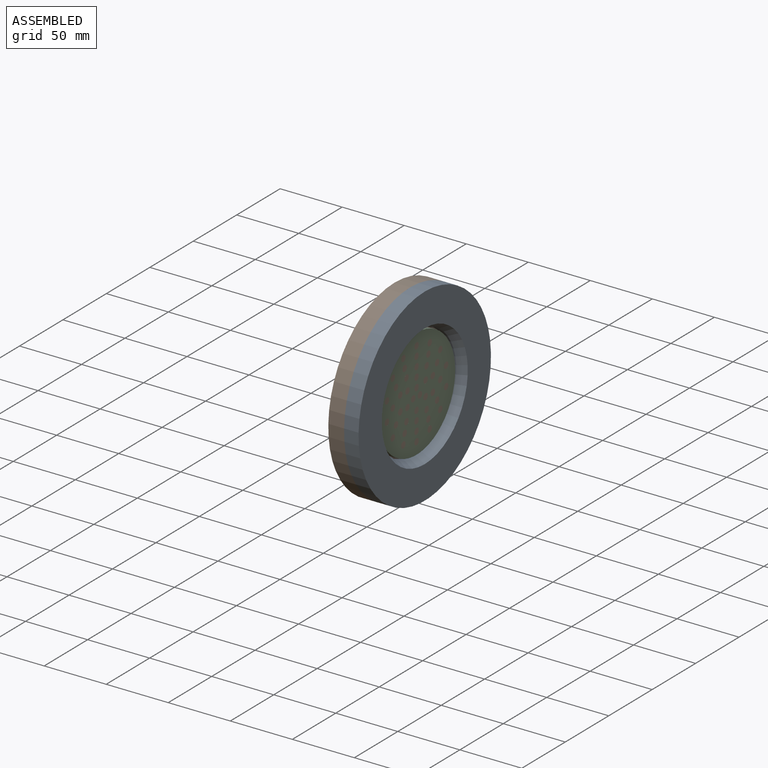
[diagram: assembled view]
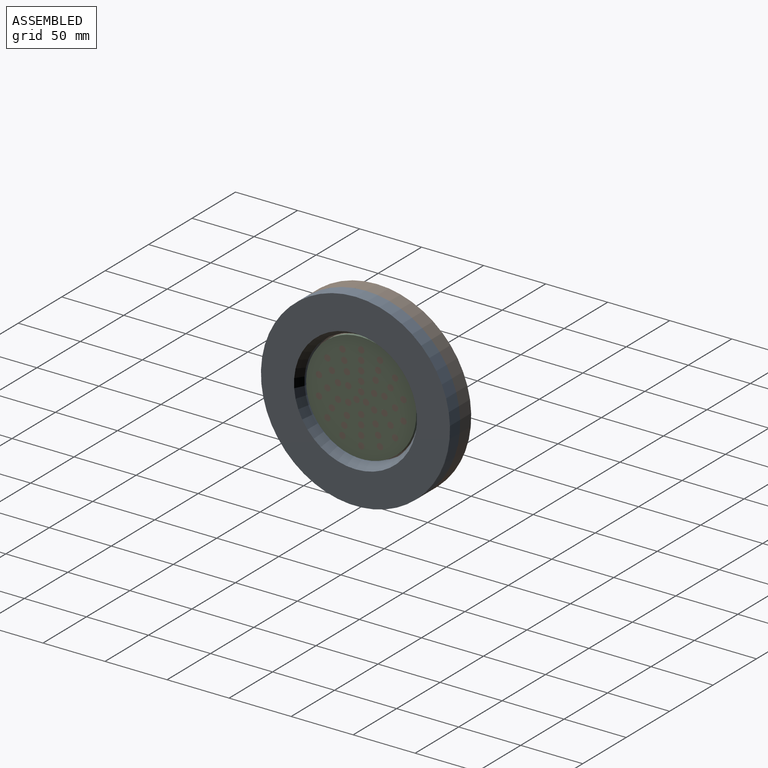
[diagram: assembled view, second angle]
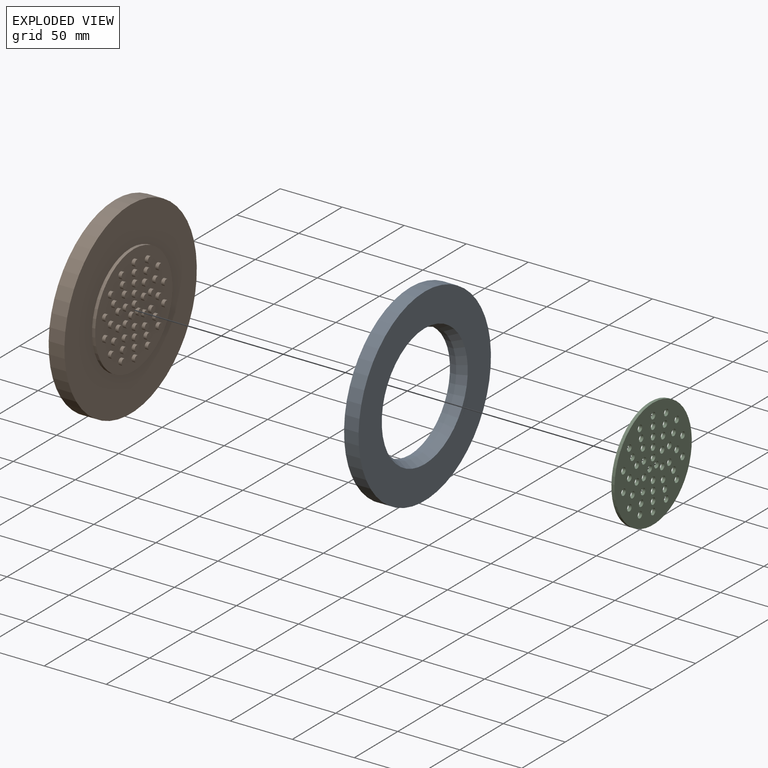
[diagram: exploded view]
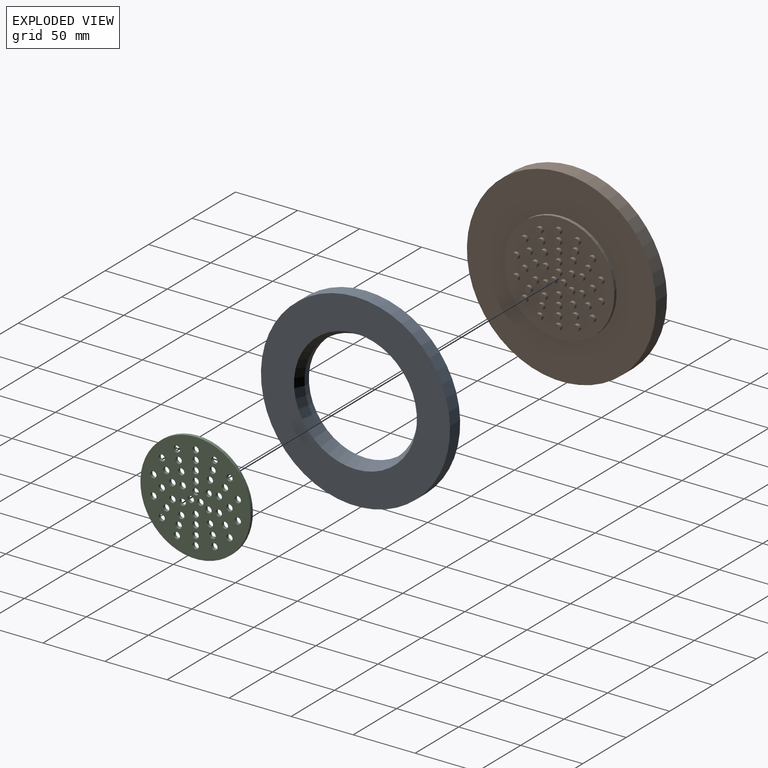
[diagram: exploded view, second angle]
ASSEMBLY  parts=3 mates=3
PART A: 5 faces, bbox 11.7x152.4x152.4 mm
  f0: plane 152.4x152.4mm, normal (-1,0,0), area 11674.5mm2, adj f1,f4
  f1: cylinder r=45.72mm len=91.44mm, axis (-1,0,0), area 1459.3mm2, adj f0,f2
  f2: cone r=45.72mm half-angle=30deg, axis (1,0,0), area 2281.9mm2, adj f1,f3
  f3: plane 152.4x152.4mm, normal (1,0,0), area 10533.6mm2, adj f2,f4
  f4: cylinder r=76.2mm len=152.4mm, axis (-1,0,0), area 5594.1mm2, adj f0,f3
PART B: 95 faces, bbox 17.8x152.4x152.4 mm
  f0: plane 88.9x88.9mm, normal (1,0,0), area 5295.1mm2, adj f1,f2,f4,f6,f8,f10,f12,f14
  f1: cylinder r=44.45mm len=88.9mm, axis (-1,0,0), area 709.4mm2, adj f0,f94
  f2: cylinder r=2.54mm len=5.08mm, axis (-1,0,0), area 40.5mm2, adj f0,f3
  f3: plane 5.08x5.08mm, normal (1,0,0), area 20.3mm2, adj f2
  f4: cylinder r=2.54mm len=5.08mm, axis (-1,0,0), area 40.5mm2, adj f0,f5
  f5: plane 5.08x5.08mm, normal (1,0,0), area 20.3mm2, adj f4
  f6: cylinder r=2.54mm len=5.08mm, axis (-1,0,0), area 40.5mm2, adj f0,f7
  f7: plane 5.08x5.08mm, normal (1,0,0), area 20.3mm2, adj f6
  f8: cylinder r=2.54mm len=5.08mm, axis (-1,0,0), area 40.5mm2, adj f0,f9
  f9: plane 5.08x5.08mm, normal (1,0,0), area 20.3mm2, adj f8
  f10: cylinder r=2.54mm len=5.08mm, axis (-1,0,0), area 40.5mm2, adj f0,f11
  f11: plane 5.08x5.08mm, normal (1,0,0), area 20.3mm2, adj f10
  f12: cylinder r=2.54mm len=5.08mm, axis (-1,0,0), area 40.5mm2, adj f0,f13
  f13: plane 5.08x5.08mm, normal (1,0,0), area 20.3mm2, adj f12
  f14: cylinder r=2.54mm len=5.08mm, axis (-1,0,0), area 40.5mm2, adj f0,f15
  f15: plane 5.08x5.08mm, normal (1,0,0), area 20.3mm2, adj f14
  f16: cylinder r=2.54mm len=5.08mm, axis (-1,0,0), area 40.5mm2, adj f0,f17
  f17: plane 5.08x5.08mm, normal (1,0,0), area 20.3mm2, adj f16
  f18: cylinder r=2.54mm len=5.08mm, axis (-1,0,0), area 40.5mm2, adj f0,f19
  f19: plane 5.08x5.08mm, normal (1,0,0), area 20.3mm2, adj f18
  f20: cylinder r=2.54mm len=5.08mm, axis (-1,0,0), area 40.5mm2, adj f0,f21
  f21: plane 5.08x5.08mm, normal (1,0,0), area 20.3mm2, adj f20
  f22: cylinder r=2.54mm len=5.08mm, axis (-1,0,0), area 40.5mm2, adj f0,f23
  f23: plane 5.08x5.08mm, normal (1,0,0), area 20.3mm2, adj f22
  f24: cylinder r=2.54mm len=5.08mm, axis (-1,0,0), area 40.5mm2, adj f0,f25
  f25: plane 5.08x5.08mm, normal (1,0,0), area 20.3mm2, adj f24
  f26: cylinder r=2.54mm len=5.08mm, axis (-1,0,0), area 40.5mm2, adj f0,f27
  f27: plane 5.08x5.08mm, normal (1,0,0), area 20.3mm2, adj f26
  f28: cylinder r=2.54mm len=5.08mm, axis (-1,0,0), area 40.5mm2, adj f0,f29
  f29: plane 5.08x5.08mm, normal (1,0,0), area 20.3mm2, adj f28
  f30: cylinder r=2.54mm len=5.08mm, axis (-1,0,0), area 40.5mm2, adj f0,f31
  f31: plane 5.08x5.08mm, normal (1,0,0), area 20.3mm2, adj f30
  f32: cylinder r=2.54mm len=5.08mm, axis (-1,0,0), area 40.5mm2, adj f0,f33
  f33: plane 5.08x5.08mm, normal (1,0,0), area 20.3mm2, adj f32
  f34: cylinder r=2.54mm len=5.08mm, axis (-1,0,0), area 40.5mm2, adj f0,f35
  f35: plane 5.08x5.08mm, normal (1,0,0), area 20.3mm2, adj f34
  f36: cylinder r=2.54mm len=5.08mm, axis (-1,0,0), area 40.5mm2, adj f0,f37
  f37: plane 5.08x5.08mm, normal (1,0,0), area 20.3mm2, adj f36
  f38: cylinder r=2.54mm len=5.08mm, axis (-1,0,0), area 40.5mm2, adj f0,f39
  f39: plane 5.08x5.08mm, normal (1,0,0), area 20.3mm2, adj f38
  f40: cylinder r=2.54mm len=5.08mm, axis (-1,0,0), area 40.5mm2, adj f0,f41
  f41: plane 5.08x5.08mm, normal (1,0,0), area 20.3mm2, adj f40
  f42: cylinder r=2.54mm len=5.08mm, axis (-1,0,0), area 40.5mm2, adj f0,f43
  f43: plane 5.08x5.08mm, normal (1,0,0), area 20.3mm2, adj f42
  f44: cylinder r=2.54mm len=5.08mm, axis (-1,0,0), area 40.5mm2, adj f0,f45
  f45: plane 5.08x5.08mm, normal (1,0,0), area 20.3mm2, adj f44
  f46: cylinder r=2.54mm len=5.08mm, axis (-1,0,0), area 40.5mm2, adj f0,f47
  f47: plane 5.08x5.08mm, normal (1,0,0), area 20.3mm2, adj f46
  f48: cylinder r=2.54mm len=5.08mm, axis (-1,0,0), area 40.5mm2, adj f0,f49
  f49: plane 5.08x5.08mm, normal (1,0,0), area 20.3mm2, adj f48
  f50: cylinder r=2.54mm len=5.08mm, axis (-1,0,0), area 40.5mm2, adj f0,f51
  f51: plane 5.08x5.08mm, normal (1,0,0), area 20.3mm2, adj f50
  f52: cylinder r=2.54mm len=5.08mm, axis (-1,0,0), area 40.5mm2, adj f0,f53
  f53: plane 5.08x5.08mm, normal (1,0,0), area 20.3mm2, adj f52
  f54: cylinder r=2.54mm len=5.08mm, axis (-1,0,0), area 40.5mm2, adj f0,f55
  f55: plane 5.08x5.08mm, normal (1,0,0), area 20.3mm2, adj f54
  f56: cylinder r=2.54mm len=5.08mm, axis (-1,0,0), area 40.5mm2, adj f0,f57
  f57: plane 5.08x5.08mm, normal (1,0,0), area 20.3mm2, adj f56
  f58: cylinder r=2.54mm len=5.08mm, axis (-1,0,0), area 40.5mm2, adj f0,f59
  f59: plane 5.08x5.08mm, normal (1,0,0), area 20.3mm2, adj f58
  f60: cylinder r=2.54mm len=5.08mm, axis (-1,0,0), area 40.5mm2, adj f0,f61
  f61: plane 5.08x5.08mm, normal (1,0,0), area 20.3mm2, adj f60
  f62: cylinder r=2.54mm len=5.08mm, axis (-1,0,0), area 40.5mm2, adj f0,f63
  f63: plane 5.08x5.08mm, normal (1,0,0), area 20.3mm2, adj f62
  f64: cylinder r=2.54mm len=5.08mm, axis (-1,0,0), area 40.5mm2, adj f0,f65
  f65: plane 5.08x5.08mm, normal (1,0,0), area 20.3mm2, adj f64
  f66: cylinder r=2.54mm len=5.08mm, axis (-1,0,0), area 40.5mm2, adj f0,f67
  f67: plane 5.08x5.08mm, normal (1,0,0), area 20.3mm2, adj f66
  f68: cylinder r=2.54mm len=5.08mm, axis (-1,0,0), area 40.5mm2, adj f0,f69
  f69: plane 5.08x5.08mm, normal (1,0,0), area 20.3mm2, adj f68
  f70: cylinder r=2.54mm len=5.08mm, axis (-1,0,0), area 40.5mm2, adj f0,f71
  f71: plane 5.08x5.08mm, normal (1,0,0), area 20.3mm2, adj f70
  f72: cylinder r=2.54mm len=5.08mm, axis (-1,0,0), area 40.5mm2, adj f0,f73
  f73: plane 5.08x5.08mm, normal (1,0,0), area 20.3mm2, adj f72
  f74: cylinder r=2.54mm len=5.08mm, axis (-1,0,0), area 40.5mm2, adj f0,f75
  f75: plane 5.08x5.08mm, normal (1,0,0), area 20.3mm2, adj f74
  f76: cylinder r=2.54mm len=5.08mm, axis (-1,0,0), area 40.5mm2, adj f0,f77
  f77: plane 5.08x5.08mm, normal (1,0,0), area 20.3mm2, adj f76
  f78: cylinder r=2.54mm len=5.08mm, axis (-1,0,0), area 40.5mm2, adj f0,f79
  f79: plane 5.08x5.08mm, normal (1,0,0), area 20.3mm2, adj f78
  f80: cylinder r=2.54mm len=5.08mm, axis (-1,0,0), area 40.5mm2, adj f0,f81
  f81: plane 5.08x5.08mm, normal (1,0,0), area 20.3mm2, adj f80
  f82: cylinder r=2.54mm len=5.08mm, axis (-1,0,0), area 40.5mm2, adj f0,f83
  f83: plane 5.08x5.08mm, normal (1,0,0), area 20.3mm2, adj f82
  f84: cylinder r=2.54mm len=5.08mm, axis (-1,0,0), area 40.5mm2, adj f0,f85
  f85: plane 5.08x5.08mm, normal (1,0,0), area 20.3mm2, adj f84
  f86: cylinder r=2.54mm len=5.08mm, axis (-1,0,0), area 40.5mm2, adj f0,f87
  f87: plane 5.08x5.08mm, normal (1,0,0), area 20.3mm2, adj f86
  f88: cylinder r=2.54mm len=5.08mm, axis (-1,0,0), area 40.5mm2, adj f0,f89
  f89: plane 5.08x5.08mm, normal (1,0,0), area 20.3mm2, adj f88
  f90: cylinder r=2.54mm len=5.08mm, axis (-1,0,0), area 40.5mm2, adj f0,f91
  f91: plane 5.08x5.08mm, normal (1,0,0), area 20.3mm2, adj f90
  f92: cylinder r=76.2mm len=152.4mm, axis (1,0,0), area 6080.5mm2, adj f93,f94
  f93: plane 152.4x152.4mm, normal (-1,0,0), area 18241.5mm2, adj f92
  f94: plane 152.4x152.4mm, normal (1,0,0), area 12034.3mm2, adj f1,f92
PART C: 48 faces, bbox 2.5x88.9x88.9 mm
  f0: plane 88.9x88.9mm, normal (-1,0,0), area 5295.1mm2, adj f2,f3,f4,f5,f6,f7,f8,f9
  f1: plane 88.9x88.9mm, normal (1,0,0), area 5295.1mm2, adj f2,f3,f4,f5,f6,f7,f8,f9
  f2: cylinder r=44.45mm len=88.9mm, axis (-1,0,0), area 709.4mm2, adj f0,f1
  f3: cylinder r=2.54mm len=5.08mm, axis (-1,0,0), area 40.5mm2, adj f0,f1
  f4: cylinder r=2.54mm len=5.08mm, axis (-1,0,0), area 40.5mm2, adj f0,f1
  f5: cylinder r=2.54mm len=5.08mm, axis (-1,0,0), area 40.5mm2, adj f0,f1
  f6: cylinder r=2.54mm len=5.08mm, axis (-1,0,0), area 40.5mm2, adj f0,f1
  f7: cylinder r=2.54mm len=5.08mm, axis (-1,0,0), area 40.5mm2, adj f0,f1
  f8: cylinder r=2.54mm len=5.08mm, axis (-1,0,0), area 40.5mm2, adj f0,f1
  f9: cylinder r=2.54mm len=5.08mm, axis (-1,0,0), area 40.5mm2, adj f0,f1
  f10: cylinder r=2.54mm len=5.08mm, axis (-1,0,0), area 40.5mm2, adj f0,f1
  f11: cylinder r=2.54mm len=5.08mm, axis (-1,0,0), area 40.5mm2, adj f0,f1
  f12: cylinder r=2.54mm len=5.08mm, axis (-1,0,0), area 40.5mm2, adj f0,f1
  f13: cylinder r=2.54mm len=5.08mm, axis (-1,0,0), area 40.5mm2, adj f0,f1
  f14: cylinder r=2.54mm len=5.08mm, axis (-1,0,0), area 40.5mm2, adj f0,f1
  f15: cylinder r=2.54mm len=5.08mm, axis (-1,0,0), area 40.5mm2, adj f0,f1
  f16: cylinder r=2.54mm len=5.08mm, axis (-1,0,0), area 40.5mm2, adj f0,f1
  f17: cylinder r=2.54mm len=5.08mm, axis (-1,0,0), area 40.5mm2, adj f0,f1
  f18: cylinder r=2.54mm len=5.08mm, axis (-1,0,0), area 40.5mm2, adj f0,f1
  f19: cylinder r=2.54mm len=5.08mm, axis (-1,0,0), area 40.5mm2, adj f0,f1
  f20: cylinder r=2.54mm len=5.08mm, axis (-1,0,0), area 40.5mm2, adj f0,f1
  f21: cylinder r=2.54mm len=5.08mm, axis (-1,0,0), area 40.5mm2, adj f0,f1
  f22: cylinder r=2.54mm len=5.08mm, axis (-1,0,0), area 40.5mm2, adj f0,f1
  f23: cylinder r=2.54mm len=5.08mm, axis (-1,0,0), area 40.5mm2, adj f0,f1
  f24: cylinder r=2.54mm len=5.08mm, axis (-1,0,0), area 40.5mm2, adj f0,f1
  f25: cylinder r=2.54mm len=5.08mm, axis (-1,0,0), area 40.5mm2, adj f0,f1
  f26: cylinder r=2.54mm len=5.08mm, axis (-1,0,0), area 40.5mm2, adj f0,f1
  f27: cylinder r=2.54mm len=5.08mm, axis (-1,0,0), area 40.5mm2, adj f0,f1
  f28: cylinder r=2.54mm len=5.08mm, axis (-1,0,0), area 40.5mm2, adj f0,f1
  f29: cylinder r=2.54mm len=5.08mm, axis (-1,0,0), area 40.5mm2, adj f0,f1
  f30: cylinder r=2.54mm len=5.08mm, axis (-1,0,0), area 40.5mm2, adj f0,f1
  f31: cylinder r=2.54mm len=5.08mm, axis (-1,0,0), area 40.5mm2, adj f0,f1
  f32: cylinder r=2.54mm len=5.08mm, axis (-1,0,0), area 40.5mm2, adj f0,f1
  f33: cylinder r=2.54mm len=5.08mm, axis (-1,0,0), area 40.5mm2, adj f0,f1
  f34: cylinder r=2.54mm len=5.08mm, axis (-1,0,0), area 40.5mm2, adj f0,f1
  f35: cylinder r=2.54mm len=5.08mm, axis (-1,0,0), area 40.5mm2, adj f0,f1
  f36: cylinder r=2.54mm len=5.08mm, axis (-1,0,0), area 40.5mm2, adj f0,f1
  f37: cylinder r=2.54mm len=5.08mm, axis (-1,0,0), area 40.5mm2, adj f0,f1
  f38: cylinder r=2.54mm len=5.08mm, axis (-1,0,0), area 40.5mm2, adj f0,f1
  f39: cylinder r=2.54mm len=5.08mm, axis (-1,0,0), area 40.5mm2, adj f0,f1
  f40: cylinder r=2.54mm len=5.08mm, axis (-1,0,0), area 40.5mm2, adj f0,f1
  f41: cylinder r=2.54mm len=5.08mm, axis (-1,0,0), area 40.5mm2, adj f0,f1
  f42: cylinder r=2.54mm len=5.08mm, axis (-1,0,0), area 40.5mm2, adj f0,f1
  f43: cylinder r=2.54mm len=5.08mm, axis (-1,0,0), area 40.5mm2, adj f0,f1
  f44: cylinder r=2.54mm len=5.08mm, axis (-1,0,0), area 40.5mm2, adj f0,f1
  f45: cylinder r=2.54mm len=5.08mm, axis (-1,0,0), area 40.5mm2, adj f0,f1
  f46: cylinder r=2.54mm len=5.08mm, axis (-1,0,0), area 40.5mm2, adj f0,f1
  f47: cylinder r=2.54mm len=5.08mm, axis (-1,0,0), area 40.5mm2, adj f0,f1
PLACE A t=(11.43,0,0)mm
PLACE B at identity
PLACE C t=(2.54,0,0)mm
MATE planar C.f2 <-> B.f1  axis (-1,0,0) through (2.54,0,0)mm
MATE cylindrical B.f1 <-> C.f2  axis (1,0,0) through (2.54,0,0)mm
MATE cylindrical A.f1 <-> B.f92  axis (-1,0,0) through (0,0,0)mm
